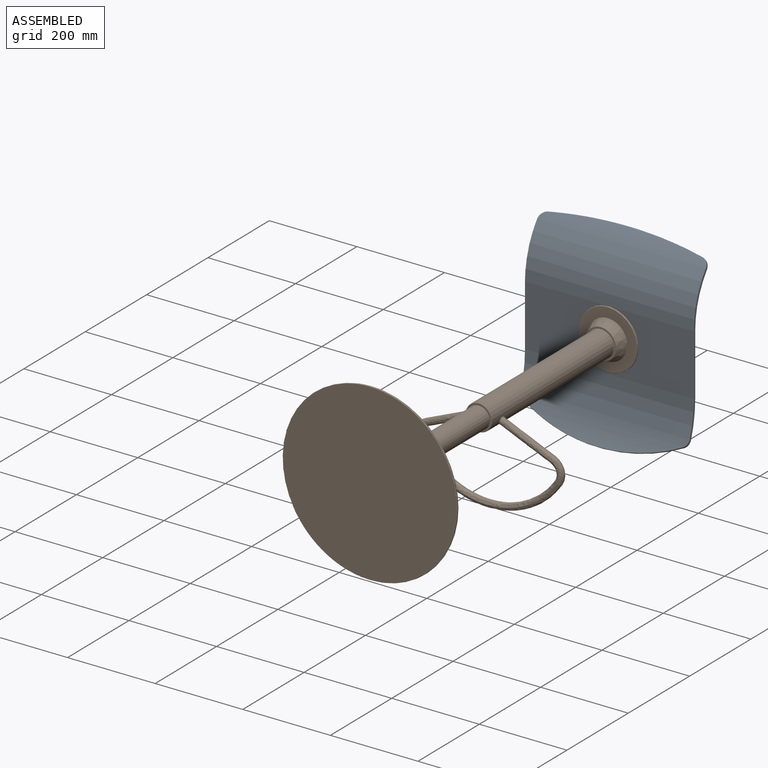
[diagram: assembled view]
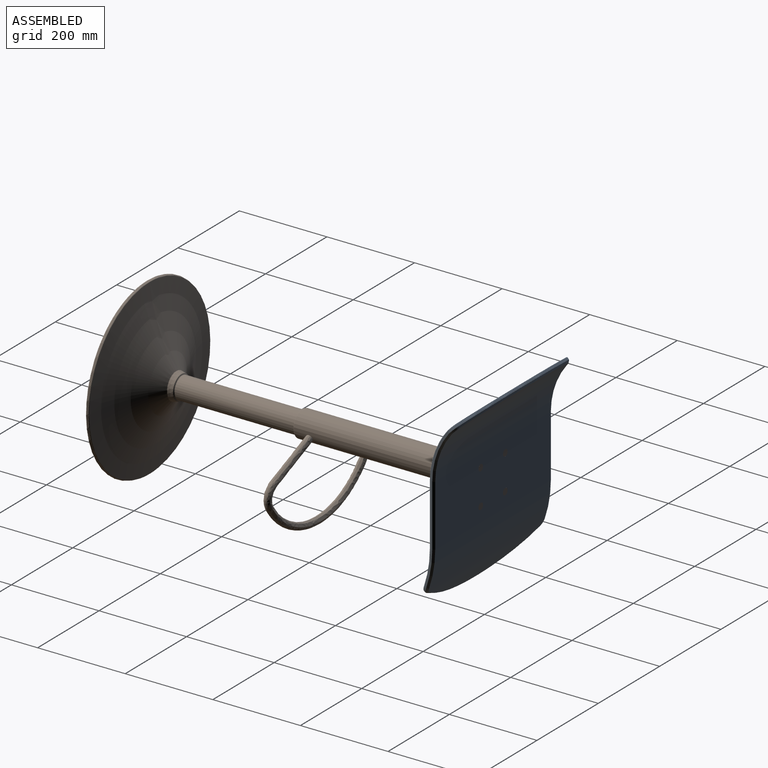
[diagram: assembled view, second angle]
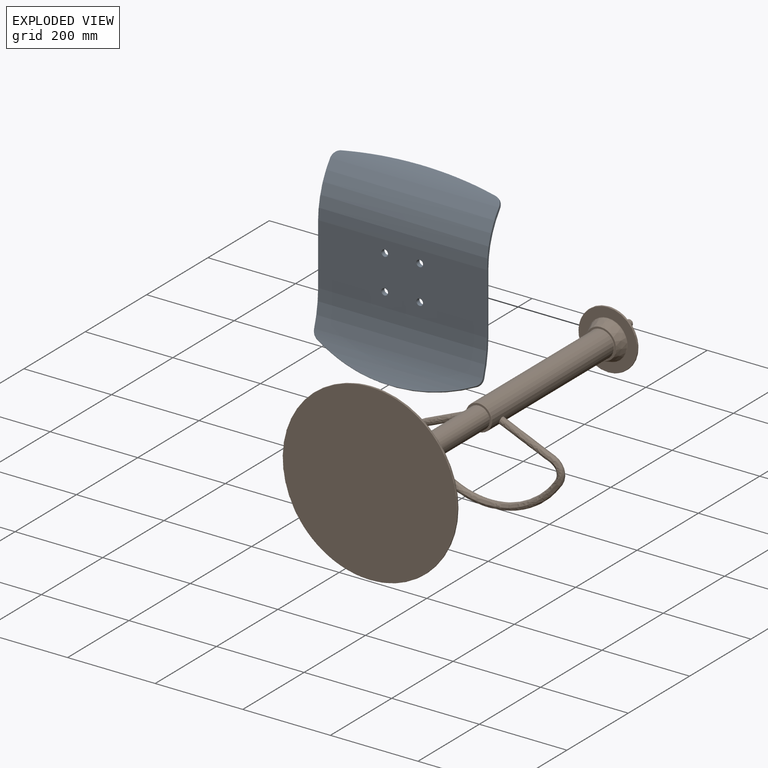
[diagram: exploded view]
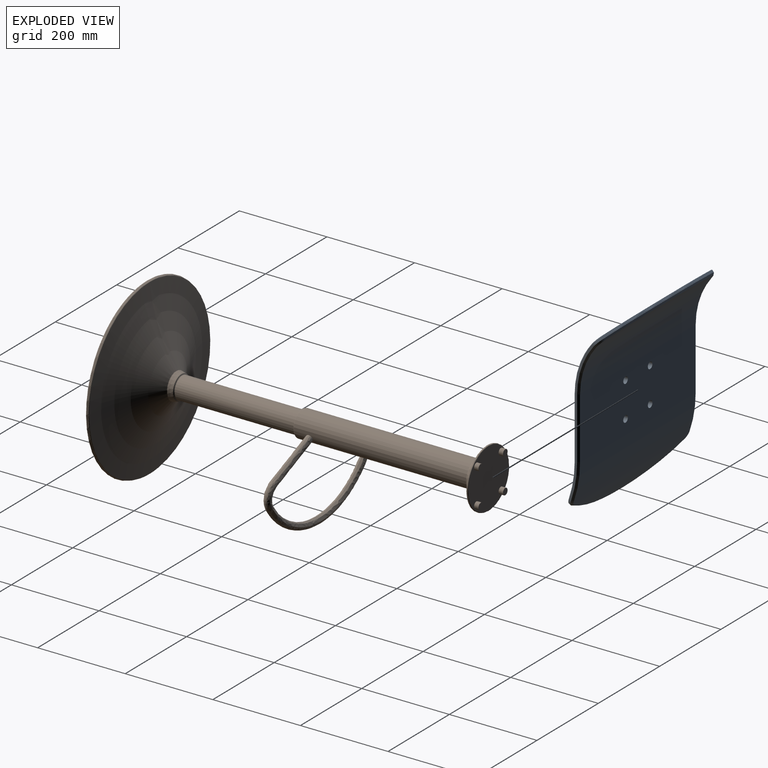
[diagram: exploded view, second angle]
ASSEMBLY  parts=2 mates=2
PART A: 42 faces, bbox 385.4x112.7x418.7 mm
  f0: cylinder r=395.56mm len=363.37mm, axis (0,0.84,-0.54), area 1821.6mm2, adj f5,f6,f7,f9
  f1: cylinder r=936.41mm len=352.53mm, axis (0,-0.65,0.76), area 1895.7mm2, adj f2,f3,f4,f13
  f2: cylinder r=20mm len=20.11mm, axis (0,-0.65,0.76), area 144.4mm2, adj f1,f14,f18,f20
  f3: bspline ~352.53x16.97mm, area 1947.2mm2, adj f1,f19,f20,f33
  f4: cylinder r=20mm len=20.11mm, axis (0,-0.65,0.76), area 144.4mm2, adj f1,f17,f19,f23
  f5: cylinder r=20mm len=19.42mm, axis (0,0.84,-0.54), area 106.6mm2, adj f0,f10,f18,f24
  f6: bspline ~363.37x40.99mm, area 2199.3mm2, adj f0,f24,f27,f35
  f7: cylinder r=20mm len=19.42mm, axis (0,0.84,-0.54), area 106.6mm2, adj f0,f8,f23,f27
  f8: bspline ~17.24x11.27mm, area 32mm2, adj f7,f9,f12,f29
  f9: bspline ~363.37x40.43mm, area 570.2mm2, adj f0,f8,f10,f29
  f10: bspline ~17.24x11.27mm, area 32mm2, adj f5,f9,f11,f29
  f11: torus R=248.81mm, axis (-1,0,0), area 126.5mm2, adj f10,f18,f28,f29
  f12: torus R=248.81mm, axis (-1,0,0), area 126.5mm2, adj f8,f23,f29,f30
  f13: bspline ~352.57x13.7mm, area 569.6mm2, adj f1,f14,f17,f31
  f14: bspline ~16.43x15.66mm, area 45mm2, adj f2,f13,f15,f31
  f15: torus R=182.27mm, axis (-1,0,0), area 192mm2, adj f14,f18,f28,f31
  f16: torus R=182.27mm, axis (-1,0,0), area 192mm2, adj f17,f23,f30,f31
  f17: bspline ~16.43x15.66mm, area 45mm2, adj f4,f13,f16,f31
  f18: plane 335.5x55.92mm, normal (1,0,0), area 1708.4mm2, adj f2,f5,f11,f15,f21,f25,f28,f32
  f19: bspline ~17.1x16.99mm, area 134.9mm2, adj f3,f4,f22,f33
  f20: bspline ~17.1x16.99mm, area 134.9mm2, adj f2,f3,f21,f33
  f21: cone r=0mm half-angle=45deg, axis (1,0,0), area 657mm2, adj f18,f20,f32,f33
  f22: cone r=0mm half-angle=45deg, axis (-1,0,0), area 657mm2, adj f19,f23,f33,f34
  f23: plane 335.5x55.92mm, normal (-1,0,0), area 1708.3mm2, adj f4,f7,f12,f16,f22,f26,f30,f34
  f24: bspline ~16.71x12.81mm, area 118.9mm2, adj f5,f6,f25,f35
  f25: cone r=0mm half-angle=45deg, axis (-1,0,0), area 476.8mm2, adj f18,f24,f32,f35
  f26: cone r=0mm half-angle=45deg, axis (1,0,0), area 476.8mm2, adj f23,f27,f34,f35
  f27: bspline ~16.82x12.65mm, area 118.9mm2, adj f6,f7,f26,f35
  f28: cylinder r=1mm len=140mm, axis (0,0,-1), area 219.9mm2, adj f11,f15,f18,f39
  f29: cylinder r=247.81mm len=383mm, axis (-1,0,0), area 48026.9mm2, adj f8,f9,f10,f11,f12,f39
  f30: cylinder r=1mm len=140mm, axis (0,0,1), area 219.9mm2, adj f12,f16,f23,f39
  f31: cylinder r=183.27mm len=383mm, axis (-1,0,0), area 57855.5mm2, adj f13,f14,f15,f16,f17,f39
  f32: plane 140x4mm, normal (0.71,0.71,0), area 792mm2, adj f18,f21,f25,f40
  f33: cylinder r=173.27mm len=377mm, axis (-1,0,0), area 52784.6mm2, adj f3,f19,f20,f21,f22,f40
  f34: plane 140x4mm, normal (-0.71,0.71,0), area 792mm2, adj f22,f23,f26,f40
  f35: cylinder r=257.81mm len=377mm, axis (-1,0,0), area 48342.9mm2, adj f6,f24,f25,f26,f27,f40
  f36: cylinder r=7.5mm len=15mm, axis (0,1,0), area 471.2mm2, adj f39,f40
  f37: cylinder r=7.5mm len=15mm, axis (0,1,0), area 471.2mm2, adj f39,f40
  f38: cylinder r=7.5mm len=15mm, axis (0,1,0), area 471.2mm2, adj f39,f40
  f39: plane 383x140mm, normal (0,-1,0), area 52913.1mm2, adj f28,f29,f30,f31,f36,f37,f38,f41
  f40: plane 377x140mm, normal (0,1,0), area 52073.1mm2, adj f32,f33,f34,f35,f36,f37,f38,f41
  f41: cylinder r=7.5mm len=15mm, axis (0,1,0), area 471.2mm2, adj f39,f40
PART B: 48 faces, bbox 432.2x790x432.2 mm
  f0: plane 397.27x397.27mm, normal (0,-1,0), area 123596mm2, adj f1,f2
  f1: torus R=198.64mm, axis (0,-1,0), area 1174.8mm2, adj f0,f2,f7
  f2: torus R=198.64mm, axis (0,-1,0), area 1174.8mm2, adj f0,f1,f7
  f3: plane 15x15mm, normal (0,1,0), area 176.7mm2, adj f8
  f4: plane 15x15mm, normal (0,1,0), area 176.7mm2, adj f9
  f5: plane 15x15mm, normal (0,1,0), area 176.7mm2, adj f10
  f6: plane 15x15mm, normal (0,1,0), area 176.7mm2, adj f11
  f7: cone r=0mm half-angle=17.5deg, axis (0,-1,0), area 5398.5mm2, adj f1,f2,f12,f13
  f8: cylinder r=7.5mm len=15mm, axis (0,-1,0), area 471.2mm2, adj f3,f14
  f9: cylinder r=7.5mm len=15mm, axis (0,-1,0), area 471.2mm2, adj f4,f14
  f10: cylinder r=7.5mm len=15mm, axis (0,-1,0), area 471.2mm2, adj f5,f14
  f11: cylinder r=7.5mm len=15mm, axis (0,-1,0), area 471.2mm2, adj f6,f14
  f12: torus R=197.34mm, axis (0,-1,0), area 725.9mm2, adj f7,f13,f15
  f13: torus R=197.34mm, axis (0,-1,0), area 725.9mm2, adj f7,f12,f16
  f14: plane 133x133mm, normal (0,1,0), area 13182.5mm2, adj f8,f9,f10,f11,f17,f18
  f15: torus R=232.42mm, axis (0,-1,0), area 62806.9mm2, adj f12,f16,f19
  f16: torus R=232.42mm, axis (0,-1,0), area 62806.9mm2, adj f13,f15,f20
  f17: torus R=66.5mm, axis (0,-1,0), area 331.3mm2, adj f14,f18,f21
  f18: torus R=66.5mm, axis (0,-1,0), area 331.3mm2, adj f14,f17,f21
  f19: torus R=31.49mm, axis (0,-1,0), area 70.7mm2, adj f15,f20,f22
  f20: torus R=31.49mm, axis (0,-1,0), area 70.7mm2, adj f16,f19,f22
  f21: cylinder r=67.5mm len=135mm, axis (0,-1,0), area 848.2mm2, adj f17,f18,f23,f24
  f22: cone r=0mm half-angle=13.6deg, axis (0,-1,0), area 2081.3mm2, adj f19,f20,f25,f26
  f23: torus R=66.5mm, axis (0,-1,0), area 331.3mm2, adj f21,f24,f27
  f24: torus R=66.5mm, axis (0,-1,0), area 331.3mm2, adj f21,f23,f27
  f25: torus R=26.88mm, axis (0,-1,0), area 82.1mm2, adj f22,f26,f28
  f26: torus R=26.88mm, axis (0,-1,0), area 82.1mm2, adj f22,f25,f28
  f27: plane 133x133mm, normal (0,-1,0), area 7532.8mm2, adj f23,f24,f29,f30
  f28: cone r=0mm half-angle=67.8deg, axis (0,-1,0), area 293.4mm2, adj f25,f26,f31,f32
  f29: torus R=44.96mm, axis (0,-1,0), area 165.7mm2, adj f27,f30,f33
  f30: torus R=44.96mm, axis (0,-1,0), area 165.7mm2, adj f27,f29,f33
  f31: torus R=26mm, axis (0,-1,0), area 93.7mm2, adj f28,f32,f34
  f32: torus R=26mm, axis (0,-1,0), area 93.7mm2, adj f28,f31,f34
  f33: cone r=0mm half-angle=22deg, axis (0,1,0), area 5842.1mm2, adj f29,f30,f35,f36
  f34: cylinder r=25mm len=274.33mm, axis (0,-1,0), area 43091.4mm2, adj f31,f32,f37
  f35: torus R=34.33mm, axis (0,-1,0), area 130mm2, adj f33,f36,f38
  f36: torus R=34.33mm, axis (0,-1,0), area 130mm2, adj f33,f35,f38
  f37: plane 58x58mm, normal (0,-1,0), area 679.5mm2, adj f34,f39,f41
  f38: plane 68.65x68.65mm, normal (0,-1,0), area 682.7mm2, adj f35,f36,f40,f42
  f39: torus R=29mm, axis (0,-1,0), area 146.2mm2, adj f37,f41,f44
  f40: torus R=31mm, axis (0,-1,0), area 149.8mm2, adj f38,f42,f44
  f41: torus R=29mm, axis (0,-1,0), area 146.2mm2, adj f37,f39,f44
  f42: torus R=31mm, axis (0,-1,0), area 149.8mm2, adj f38,f40,f44
  f43: bspline ~336.27x198.24mm, area 13948.8mm2, adj f44,f45,f46
  f44: cylinder r=30mm len=396mm, axis (0,-1,0), area 74644.2mm2, adj f39,f40,f41,f42,f43,f45,f46,f47
  f45: bspline ~149.03x108.17mm, area 4542mm2, adj f43,f44,f47
  f46: bspline ~336.27x198.24mm, area 13948.5mm2, adj f43,f44,f47
  f47: bspline ~150.35x108.43mm, area 4560.8mm2, adj f44,f45,f46
PLACE A rot(axis=(-0.34,0.55,-0.76),0deg) t=(-101.12,551.38,151.89)mm
PLACE B rot(axis=(-0.34,0.55,-0.76),0deg) t=(-101.12,-241.12,151.89)mm
MATE revolute A.f41 <-> B.f8  axis (0,1,0) through (-61.12,548.88,191.89)mm
MATE revolute B.f9 <-> A.f38  axis (0,1,0) through (-141.12,548.88,111.89)mm
